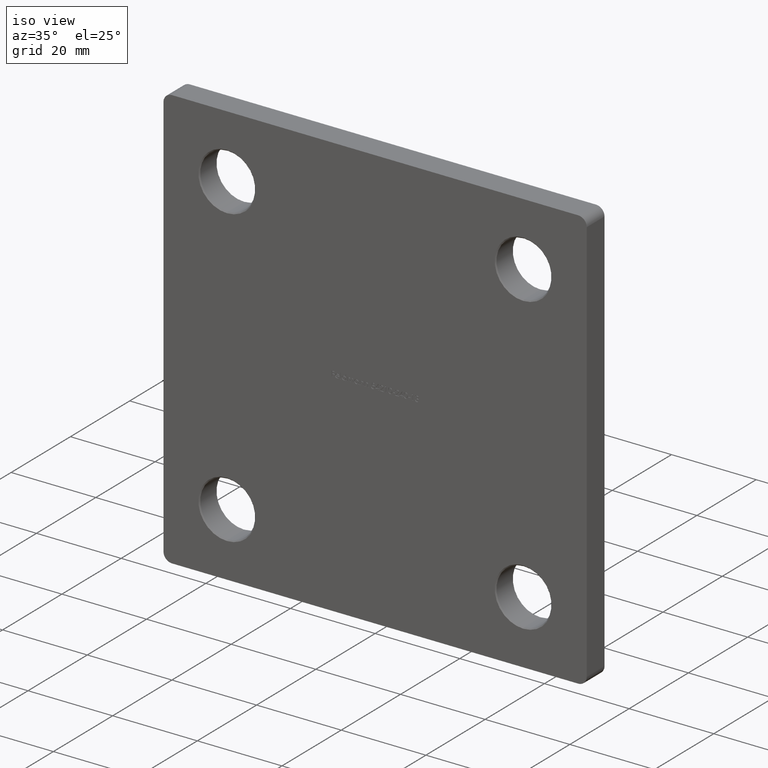
[diagram: clean part render]
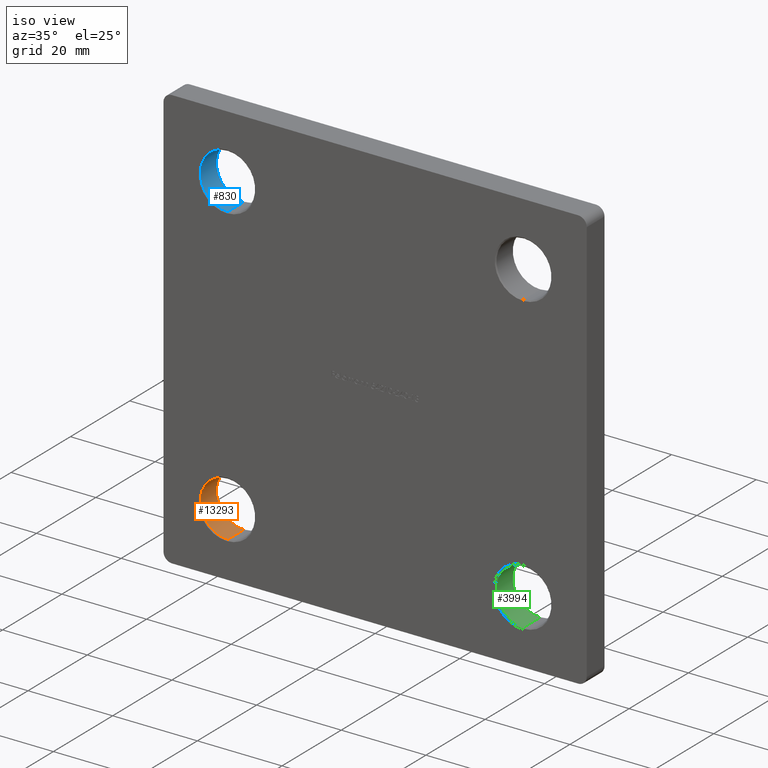
[diagram: same view with three faces highlighted in distinct colors, each labeled with its STEP entity id]
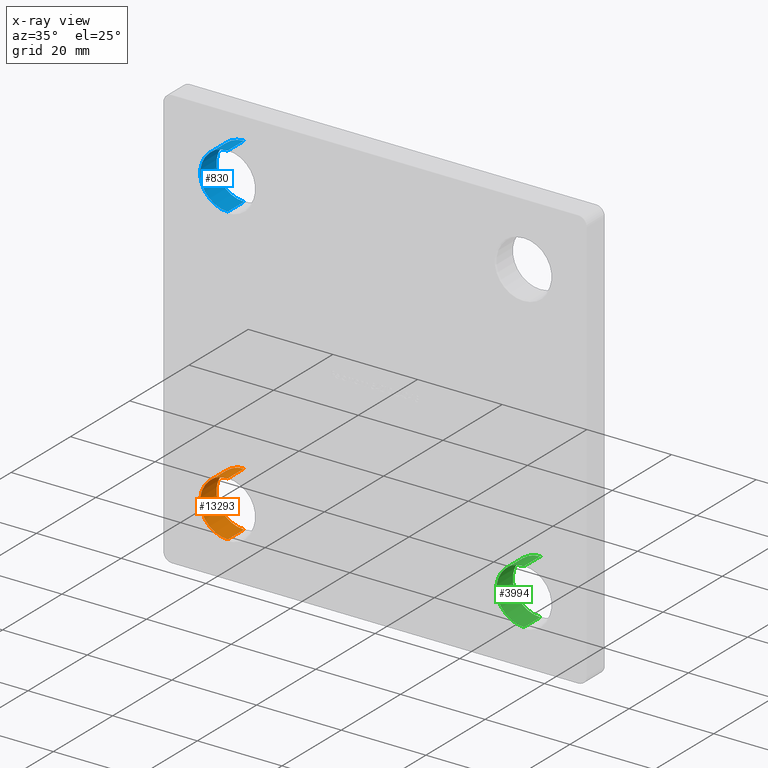
[diagram: x-ray of the same camera — body ghosted, the three highlighted faces saturated]
A machine part, iso view with three faces highlighted in distinct colors.
The next image is the same camera in x-ray (body ghosted, the three faces saturated) — at least one of them is partly hidden behind the body in this view.
Their STEP definitions:

[orange] entity #13293 — the highlighted cylindrical surface (edge-blend (fillet) strip) has radius 6.5 mm, axis along (-0, 1, -0).
#562 = LINE ( 'NONE', #14317, #1776 ) ;
#1049 = VERTEX_POINT ( 'NONE', #8203 ) ;
#1142 = EDGE_CURVE ( 'NONE', #2619, #10531, #11944, .T. ) ;
#1369 = EDGE_CURVE ( 'NONE', #10106, #1049, #1576, .T. ) ;
#1576 = CIRCLE ( 'NONE', #12252, 6.499999999999999112 ) ;
#1776 = VECTOR ( 'NONE', #6571, 1000.000000000000000 ) ;
#2003 = CARTESIAN_POINT ( 'NONE',  ( -35.00000000000000000, 5.749999999999973355, -35.00000000000000000 ) ) ;
#2401 = ORIENTED_EDGE ( 'NONE', *, *, #1369, .T. ) ;
#2442 = AXIS2_PLACEMENT_3D ( 'NONE', #2003, #4270, #14174 ) ;
#2619 = VERTEX_POINT ( 'NONE', #12364 ) ;
#3358 = DIRECTION ( 'NONE',  ( 0.000000000000000000, 0.000000000000000000, 1.000000000000000000 ) ) ;
#3529 = DIRECTION ( 'NONE',  ( 0.000000000000000000, 0.000000000000000000, 1.000000000000000000 ) ) ;
#3629 = AXIS2_PLACEMENT_3D ( 'NONE', #7702, #8805, #3529 ) ;
#3728 = ORIENTED_EDGE ( 'NONE', *, *, #6483, .T. ) ;
#3800 = VECTOR ( 'NONE', #5359, 1000.000000000000000 ) ;
#4270 = DIRECTION ( 'NONE',  ( 0.000000000000000000, 1.000000000000000000, 0.000000000000000000 ) ) ;
#4488 = DIRECTION ( 'NONE',  ( -0.000000000000000000, -1.000000000000000000, -0.000000000000000000 ) ) ;
#4624 = CYLINDRICAL_SURFACE ( 'NONE', #3629, 6.499999999999999112 ) ;
#5359 = DIRECTION ( 'NONE',  ( -0.000000000000000000, 1.000000000000000000, -0.000000000000000000 ) ) ;
#6483 = EDGE_CURVE ( 'NONE', #1049, #2619, #10179, .T. ) ;
#6571 = DIRECTION ( 'NONE',  ( -0.000000000000000000, 1.000000000000000000, -0.000000000000000000 ) ) ;
#6841 = FACE_OUTER_BOUND ( 'NONE', #12549, .T. ) ;
#7702 = CARTESIAN_POINT ( 'NONE',  ( -35.00000000000000000, 0.000000000000000000, -35.00000000000000000 ) ) ;
#7791 = ORIENTED_EDGE ( 'NONE', *, *, #14048, .F. ) ;
#8203 = CARTESIAN_POINT ( 'NONE',  ( -35.00000000000000000, 0.2500000000000132672, -41.50000000000000000 ) ) ;
#8805 = DIRECTION ( 'NONE',  ( -0.000000000000000000, 1.000000000000000000, -0.000000000000000000 ) ) ;
#9936 = CARTESIAN_POINT ( 'NONE',  ( -35.00000000000000000, 5.749999999999973355, -28.50000000000000355 ) ) ;
#10106 = VERTEX_POINT ( 'NONE', #13647 ) ;
#10179 = LINE ( 'NONE', #14102, #3800 ) ;
#10531 = VERTEX_POINT ( 'NONE', #9936 ) ;
#11858 = ORIENTED_EDGE ( 'NONE', *, *, #1142, .T. ) ;
#11944 = CIRCLE ( 'NONE', #2442, 6.499999999999999112 ) ;
#12252 = AXIS2_PLACEMENT_3D ( 'NONE', #12477, #4488, #3358 ) ;
#12364 = CARTESIAN_POINT ( 'NONE',  ( -35.00000000000000000, 5.749999999999973355, -41.50000000000000000 ) ) ;
#12477 = CARTESIAN_POINT ( 'NONE',  ( -35.00000000000000000, 0.2500000000000132672, -35.00000000000000000 ) ) ;
#12549 = EDGE_LOOP ( 'NONE', ( #2401, #3728, #11858, #7791 ) ) ;
#13293 = ADVANCED_FACE ( 'NONE', ( #6841 ), #4624, .F. ) ;
#13647 = CARTESIAN_POINT ( 'NONE',  ( -35.00000000000000000, 0.2500000000000132672, -28.50000000000000355 ) ) ;
#14048 = EDGE_CURVE ( 'NONE', #10106, #10531, #562, .T. ) ;
#14102 = CARTESIAN_POINT ( 'NONE',  ( -35.00000000000000000, 0.000000000000000000, -41.50000000000000000 ) ) ;
#14174 = DIRECTION ( 'NONE',  ( 0.000000000000000000, 0.000000000000000000, 1.000000000000000000 ) ) ;
#14317 = CARTESIAN_POINT ( 'NONE',  ( -35.00000000000000000, 0.000000000000000000, -28.50000000000000355 ) ) ;

[blue] entity #830 — the highlighted cylindrical surface (edge-blend (fillet) strip) has radius 6.5 mm, axis along (-0, 1, -0).
#69 = EDGE_LOOP ( 'NONE', ( #10914, #10456, #6448, #3195 ) ) ;
#487 = DIRECTION ( 'NONE',  ( -0.000000000000000000, 1.000000000000000000, -0.000000000000000000 ) ) ;
#830 = ADVANCED_FACE ( 'NONE', ( #12652 ), #899, .F. ) ;
#899 = CYLINDRICAL_SURFACE ( 'NONE', #8378, 6.499999999999999112 ) ;
#1056 = DIRECTION ( 'NONE',  ( 0.000000000000000000, 0.000000000000000000, 1.000000000000000000 ) ) ;
#1148 = VECTOR ( 'NONE', #487, 1000.000000000000000 ) ;
#1623 = CARTESIAN_POINT ( 'NONE',  ( -35.00000000000000000, 5.749999999999973355, 35.00000000000000000 ) ) ;
#2010 = LINE ( 'NONE', #7137, #1148 ) ;
#2905 = DIRECTION ( 'NONE',  ( 0.000000000000000000, 0.000000000000000000, 1.000000000000000000 ) ) ;
#3072 = CARTESIAN_POINT ( 'NONE',  ( -35.00000000000000000, 0.2500000000000132672, 28.50000000000000355 ) ) ;
#3195 = ORIENTED_EDGE ( 'NONE', *, *, #11172, .F. ) ;
#3761 = CARTESIAN_POINT ( 'NONE',  ( -35.00000000000000000, 0.2500000000000132672, 35.00000000000000000 ) ) ;
#4175 = CIRCLE ( 'NONE', #5744, 6.499999999999999112 ) ;
#4341 = CARTESIAN_POINT ( 'NONE',  ( -35.00000000000000000, 0.000000000000000000, 35.00000000000000000 ) ) ;
#4477 = EDGE_CURVE ( 'NONE', #12342, #6043, #12949, .T. ) ;
#4529 = CARTESIAN_POINT ( 'NONE',  ( -35.00000000000000000, 5.749999999999973355, 28.50000000000000355 ) ) ;
#4849 = DIRECTION ( 'NONE',  ( 0.000000000000000000, 0.000000000000000000, 1.000000000000000000 ) ) ;
#4877 = EDGE_CURVE ( 'NONE', #7535, #12342, #4175, .T. ) ;
#5154 = DIRECTION ( 'NONE',  ( 0.000000000000000000, 1.000000000000000000, 0.000000000000000000 ) ) ;
#5545 = CIRCLE ( 'NONE', #12107, 6.499999999999999112 ) ;
#5744 = AXIS2_PLACEMENT_3D ( 'NONE', #3761, #7099, #4849 ) ;
#6043 = VERTEX_POINT ( 'NONE', #4529 ) ;
#6448 = ORIENTED_EDGE ( 'NONE', *, *, #7652, .T. ) ;
#7099 = DIRECTION ( 'NONE',  ( -0.000000000000000000, -1.000000000000000000, -0.000000000000000000 ) ) ;
#7105 = VECTOR ( 'NONE', #7388, 1000.000000000000000 ) ;
#7137 = CARTESIAN_POINT ( 'NONE',  ( -35.00000000000000000, 0.000000000000000000, 41.50000000000000000 ) ) ;
#7388 = DIRECTION ( 'NONE',  ( -0.000000000000000000, 1.000000000000000000, -0.000000000000000000 ) ) ;
#7535 = VERTEX_POINT ( 'NONE', #9044 ) ;
#7652 = EDGE_CURVE ( 'NONE', #6043, #12171, #5545, .T. ) ;
#7802 = DIRECTION ( 'NONE',  ( -0.000000000000000000, 1.000000000000000000, -0.000000000000000000 ) ) ;
#8378 = AXIS2_PLACEMENT_3D ( 'NONE', #4341, #7802, #1056 ) ;
#9044 = CARTESIAN_POINT ( 'NONE',  ( -35.00000000000000000, 0.2500000000000132672, 41.50000000000000000 ) ) ;
#9206 = CARTESIAN_POINT ( 'NONE',  ( -35.00000000000000000, 5.749999999999973355, 41.50000000000000000 ) ) ;
#10456 = ORIENTED_EDGE ( 'NONE', *, *, #4477, .T. ) ;
#10914 = ORIENTED_EDGE ( 'NONE', *, *, #4877, .T. ) ;
#11172 = EDGE_CURVE ( 'NONE', #7535, #12171, #2010, .T. ) ;
#12107 = AXIS2_PLACEMENT_3D ( 'NONE', #1623, #5154, #2905 ) ;
#12171 = VERTEX_POINT ( 'NONE', #9206 ) ;
#12342 = VERTEX_POINT ( 'NONE', #3072 ) ;
#12652 = FACE_OUTER_BOUND ( 'NONE', #69, .T. ) ;
#12949 = LINE ( 'NONE', #13976, #7105 ) ;
#13976 = CARTESIAN_POINT ( 'NONE',  ( -35.00000000000000000, 0.000000000000000000, 28.50000000000000355 ) ) ;

[green] entity #3994 — the highlighted cylindrical surface (edge-blend (fillet) strip) has radius 6.5 mm, axis along (-0, 1, -0).
#108 = VECTOR ( 'NONE', #8580, 1000.000000000000000 ) ;
#416 = DIRECTION ( 'NONE',  ( -0.000000000000000000, -1.000000000000000000, -0.000000000000000000 ) ) ;
#560 = VERTEX_POINT ( 'NONE', #12273 ) ;
#661 = DIRECTION ( 'NONE',  ( -0.000000000000000000, 1.000000000000000000, -0.000000000000000000 ) ) ;
#947 = CARTESIAN_POINT ( 'NONE',  ( 35.00000000000000000, 5.749999999999973355, -28.50000000000000355 ) ) ;
#1139 = CARTESIAN_POINT ( 'NONE',  ( 35.00000000000000000, 0.2500000000000132672, -28.50000000000000355 ) ) ;
#1250 = VERTEX_POINT ( 'NONE', #3940 ) ;
#1439 = EDGE_CURVE ( 'NONE', #6834, #1250, #6961, .T. ) ;
#1504 = EDGE_CURVE ( 'NONE', #560, #6884, #3855, .T. ) ;
#2862 = AXIS2_PLACEMENT_3D ( 'NONE', #14080, #661, #7498 ) ;
#2903 = DIRECTION ( 'NONE',  ( 0.000000000000000000, 0.000000000000000000, 1.000000000000000000 ) ) ;
#3077 = LINE ( 'NONE', #8486, #108 ) ;
#3625 = DIRECTION ( 'NONE',  ( -0.000000000000000000, 1.000000000000000000, -0.000000000000000000 ) ) ;
#3855 = CIRCLE ( 'NONE', #12978, 6.499999999999999112 ) ;
#3940 = CARTESIAN_POINT ( 'NONE',  ( 35.00000000000000000, 0.2500000000000132672, -41.50000000000000000 ) ) ;
#3994 = ADVANCED_FACE ( 'NONE', ( #9180 ), #5419, .F. ) ;
#4033 = DIRECTION ( 'NONE',  ( 0.000000000000000000, 1.000000000000000000, 0.000000000000000000 ) ) ;
#4091 = ORIENTED_EDGE ( 'NONE', *, *, #4746, .T. ) ;
#4746 = EDGE_CURVE ( 'NONE', #1250, #560, #8117, .T. ) ;
#4864 = VECTOR ( 'NONE', #3625, 1000.000000000000000 ) ;
#5058 = DIRECTION ( 'NONE',  ( 0.000000000000000000, 0.000000000000000000, 1.000000000000000000 ) ) ;
#5419 = CYLINDRICAL_SURFACE ( 'NONE', #2862, 6.499999999999999112 ) ;
#6819 = AXIS2_PLACEMENT_3D ( 'NONE', #11539, #416, #5058 ) ;
#6834 = VERTEX_POINT ( 'NONE', #1139 ) ;
#6884 = VERTEX_POINT ( 'NONE', #947 ) ;
#6961 = CIRCLE ( 'NONE', #6819, 6.499999999999999112 ) ;
#7498 = DIRECTION ( 'NONE',  ( 0.000000000000000000, 0.000000000000000000, 1.000000000000000000 ) ) ;
#7851 = ORIENTED_EDGE ( 'NONE', *, *, #1439, .T. ) ;
#7915 = ORIENTED_EDGE ( 'NONE', *, *, #1504, .T. ) ;
#8117 = LINE ( 'NONE', #13595, #4864 ) ;
#8486 = CARTESIAN_POINT ( 'NONE',  ( 35.00000000000000000, 0.000000000000000000, -28.50000000000000355 ) ) ;
#8580 = DIRECTION ( 'NONE',  ( -0.000000000000000000, 1.000000000000000000, -0.000000000000000000 ) ) ;
#9180 = FACE_OUTER_BOUND ( 'NONE', #11121, .T. ) ;
#11121 = EDGE_LOOP ( 'NONE', ( #7851, #4091, #7915, #14057 ) ) ;
#11329 = EDGE_CURVE ( 'NONE', #6834, #6884, #3077, .T. ) ;
#11539 = CARTESIAN_POINT ( 'NONE',  ( 35.00000000000000000, 0.2500000000000132672, -35.00000000000000000 ) ) ;
#11864 = CARTESIAN_POINT ( 'NONE',  ( 35.00000000000000000, 5.749999999999973355, -35.00000000000000000 ) ) ;
#12273 = CARTESIAN_POINT ( 'NONE',  ( 35.00000000000000000, 5.749999999999973355, -41.50000000000000000 ) ) ;
#12978 = AXIS2_PLACEMENT_3D ( 'NONE', #11864, #4033, #2903 ) ;
#13595 = CARTESIAN_POINT ( 'NONE',  ( 35.00000000000000000, 0.000000000000000000, -41.50000000000000000 ) ) ;
#14057 = ORIENTED_EDGE ( 'NONE', *, *, #11329, .F. ) ;
#14080 = CARTESIAN_POINT ( 'NONE',  ( 35.00000000000000000, 0.000000000000000000, -35.00000000000000000 ) ) ;